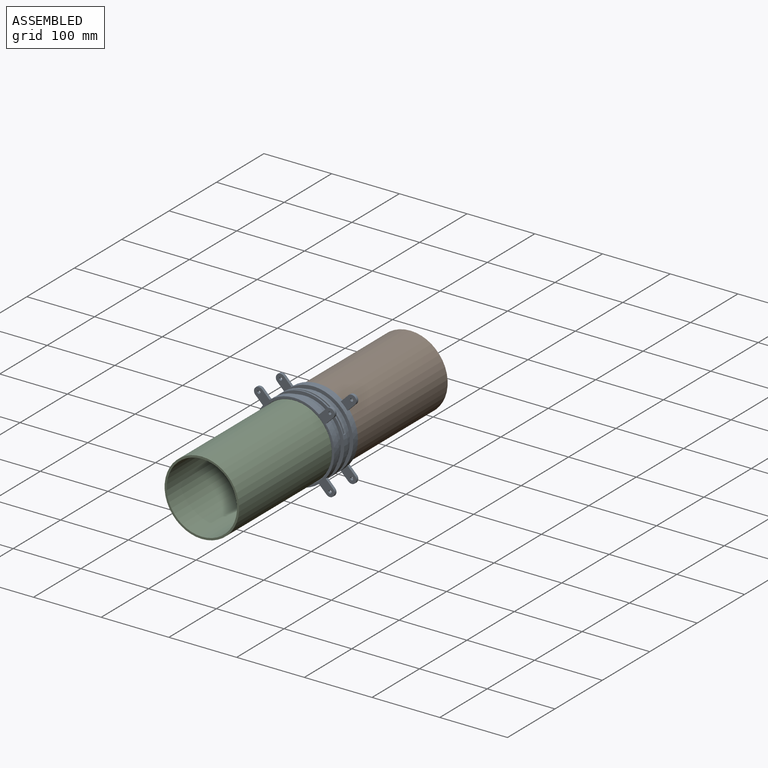
[diagram: assembled view]
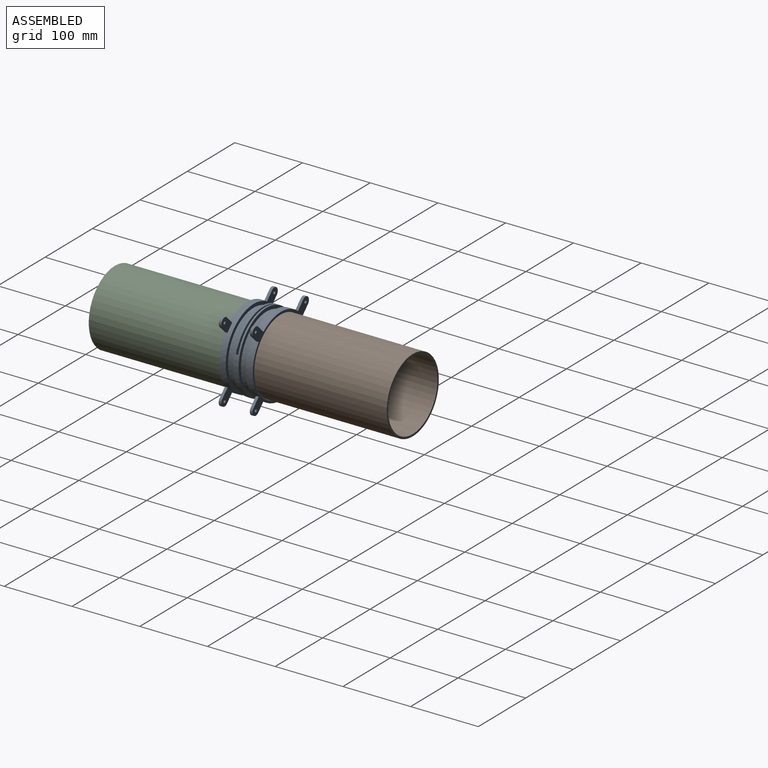
[diagram: assembled view, second angle]
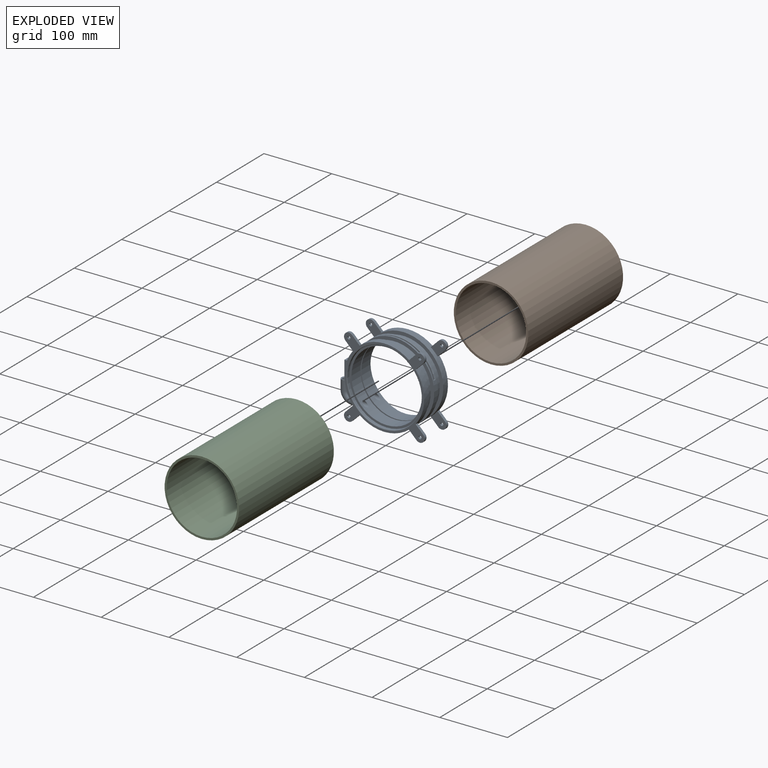
[diagram: exploded view]
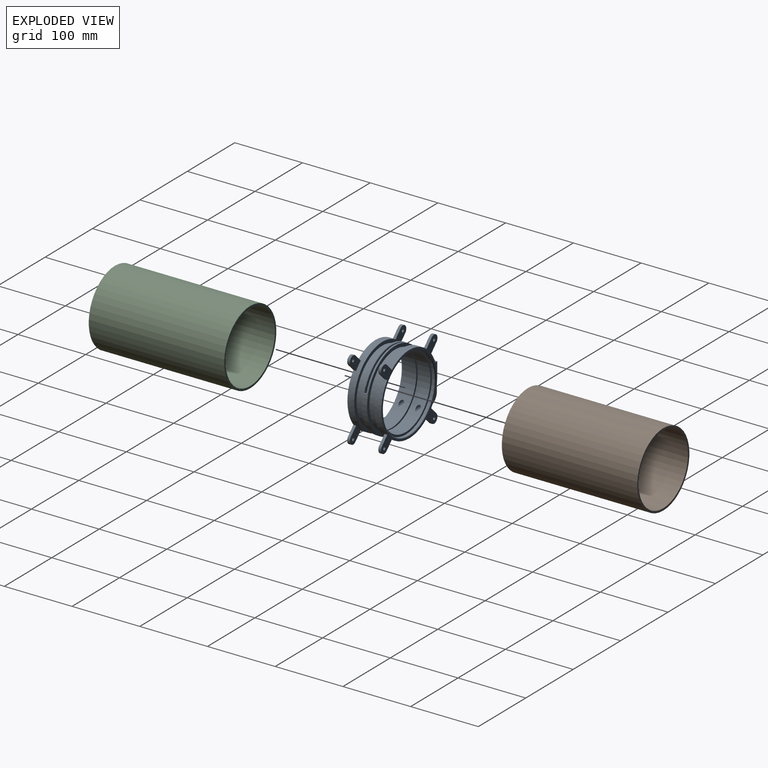
[diagram: exploded view, second angle]
ASSEMBLY  parts=3 mates=2
PART A: 101 faces, bbox 135.1x50x125.3 mm
  f0: cylinder r=52mm len=104mm, axis (0,1,0), area 6150.1mm2, adj f25,f47,f48
  f1: cylinder r=59mm len=118mm, axis (0,1,0), area 2404mm2, adj f6,f7,f11,f12,f13,f22,f54,f55
  f2: cylinder r=59mm len=118mm, axis (0,1,0), area 3243.5mm2, adj f5,f8,f9,f10,f11,f12,f15,f17
  f3: cylinder r=5.6mm len=15mm, axis (0,0,-1), area 70.6mm2, adj f11,f16,f19,f22
  f4: cylinder r=5.6mm len=15mm, axis (0,0,-1), area 334.5mm2, adj f11,f16,f18,f21
  f5: plane 118x118mm, normal (0,1,0), area 1619mm2, adj f2,f8,f9,f11,f14,f17
  f6: plane 8x4mm, normal (0,0,1), area 32mm2, adj f1,f7,f13,f51,f65
  f7: plane 21.35x8mm, normal (-1,0,0), area 170.8mm2, adj f1,f6,f13,f65
  f8: plane 10x4mm, normal (0,0,1), area 40mm2, adj f2,f5,f9,f10
  f9: plane 21.35x10mm, normal (-1,0,0), area 213.5mm2, adj f2,f5,f8,f10
  f10: plane 119x119mm, normal (0,-1,0), area 2200.1mm2, adj f2,f8,f9,f26,f27,f28,f29,f31
  f11: plane 36.2x18.93mm, normal (0,0,1), area 254.2mm2, adj f1,f2,f3,f4,f5,f13,f14,f18
  f12: plane 13.31x11mm, normal (0,0,-1), area 91.3mm2, adj f1,f2,f13,f14,f15,f16,f21,f22
  f13: plane 118x118mm, normal (0,-1,0), area 1723.8mm2, adj f1,f6,f7,f11,f12,f14
  f14: cylinder r=54mm len=108mm, axis (0,-1,0), area 3452mm2, adj f5,f11,f12,f13,f15,f17
  f15: plane 9.68x6.64mm, normal (0,1,0), area 38.4mm2, adj f2,f12,f14,f17
  f16: torus R=11.65mm, axis (0,-1,0), area 643.8mm2, adj f3,f4,f12,f17,f20
  f17: cylinder r=5.6mm len=21.12mm, axis (1,0,0), area 461.8mm2, adj f2,f5,f14,f15,f16
  f18: plane 15x14.54mm, normal (-1,0,0), area 218.1mm2, adj f4,f11,f20,f59
  f19: plane 15x14.54mm, normal (1,0,0), area 218.1mm2, adj f3,f11,f20,f58
  f20: plane 14.54x4mm, normal (0,0,-1), area 56.2mm2, adj f16,f18,f19,f68
  f21: plane 15x7.73mm, normal (0,-1,0), area 75.1mm2, adj f2,f4,f11,f12
  f22: plane 15x7.73mm, normal (0,1,0), area 75.1mm2, adj f1,f3,f11,f12
  f23: cylinder r=3.6mm len=14mm, axis (0,0,-1), area 316.7mm2, adj f24,f52
  f24: torus R=11.65mm, axis (0,-1,0), area 413.9mm2, adj f23,f25
  f25: cylinder r=3.6mm len=21.83mm, axis (1,0,0), area 408mm2, adj f0,f24
  f26: cylinder r=7mm len=11.95mm, axis (0,-1,0), area 88mm2, adj f10,f27,f29,f30
  f27: plane 11.08x11.08mm, normal (0.71,0,-0.71), area 62.7mm2, adj f2,f10,f26,f30
  f28: cylinder r=2.25mm len=4.5mm, axis (0,-1,0), area 56.5mm2, adj f10,f30
  f29: plane 11.08x11.08mm, normal (-0.71,0,0.71), area 62.7mm2, adj f2,f10,f26,f30
  f30: plane 23.03x23.03mm, normal (0,1,0), area 276.5mm2, adj f2,f26,f27,f28,f29
  f31: cylinder r=7mm len=11.95mm, axis (0,-1,0), area 88mm2, adj f10,f32,f34,f35
  f32: plane 11.08x11.08mm, normal (-0.71,0,-0.71), area 62.7mm2, adj f2,f10,f31,f35
  f33: cylinder r=2.25mm len=4.5mm, axis (0,-1,0), area 56.5mm2, adj f10,f35
  f34: plane 11.08x11.08mm, normal (0.71,0,0.71), area 62.7mm2, adj f2,f10,f31,f35
  f35: plane 23.03x23.03mm, normal (0,1,0), area 276.5mm2, adj f2,f31,f32,f33,f34
  f36: cylinder r=7mm len=11.95mm, axis (0,-1,0), area 88mm2, adj f10,f37,f39,f40
  f37: plane 11.08x11.08mm, normal (0.71,0,0.71), area 62.7mm2, adj f2,f10,f36,f40
  f38: cylinder r=2.25mm len=4.5mm, axis (0,-1,0), area 56.5mm2, adj f10,f40
  f39: plane 11.08x11.08mm, normal (-0.71,0,-0.71), area 62.7mm2, adj f2,f10,f36,f40
  f40: plane 23.03x23.03mm, normal (0,1,0), area 276.5mm2, adj f2,f36,f37,f38,f39
  f41: plane 11.08x11.08mm, normal (0.71,0,-0.71), area 62.7mm2, adj f2,f10,f42,f45
  f42: cylinder r=7mm len=11.95mm, axis (0,-1,0), area 88mm2, adj f10,f41,f43,f45
  f43: plane 11.08x11.08mm, normal (-0.71,0,0.71), area 62.7mm2, adj f2,f10,f42,f45
  f44: cylinder r=2.25mm len=4.5mm, axis (0,-1,0), area 56.5mm2, adj f10,f45
  f45: plane 23.03x23.03mm, normal (0,1,0), area 276.5mm2, adj f2,f41,f42,f43,f44
  f46: cylinder r=55.05mm len=110.1mm, axis (0,-1,0), area 1383.6mm2, adj f47,f53
  f47: plane 110.1x110.1mm, normal (0,-1,0), area 1025.7mm2, adj f0,f46
  f48: plane 113x110.73mm, normal (0,1,0), area 1468mm2, adj f0,f49,f50,f51,f54,f55
  f49: plane 15.1x2mm, normal (-1,0,0), area 30.2mm2, adj f48,f50,f55,f97
  f50: cylinder r=55mm len=110mm, axis (0,1,0), area 345.6mm2, adj f48,f49,f51,f97
  f51: plane 21.35x4mm, normal (1,0,0), area 43.9mm2, adj f6,f48,f50,f54,f97,f100
  f52: torus R=4.6mm, axis (0,0,-1), area 39.1mm2, adj f11,f23
  f53: torus R=56.05mm, axis (0,-1,0), area 546.9mm2, adj f10,f46
  f54: torus R=58mm, axis (0,1,0), area 231.5mm2, adj f1,f48,f51,f55
  f55: cylinder r=1mm len=4mm, axis (0,1,0), area 6.9mm2, adj f1,f48,f49,f54,f97,f100
  f56: cylinder r=52mm len=104mm, axis (0,-1,0), area 6150.1mm2, adj f74,f96,f97
  f57: cylinder r=59mm len=118mm, axis (0,-1,0), area 3243.5mm2, adj f11,f60,f61,f62,f63,f64,f67,f69
  f58: cylinder r=5.6mm len=15mm, axis (0,0,-1), area 70.6mm2, adj f11,f19,f68,f71
  f59: cylinder r=5.6mm len=15mm, axis (0,0,-1), area 334.5mm2, adj f11,f18,f68,f70
  f60: plane 118x118mm, normal (0,-1,0), area 1619mm2, adj f11,f57,f61,f62,f66,f69
  f61: plane 10x4mm, normal (0,0,1), area 40mm2, adj f57,f60,f62,f63
  f62: plane 21.35x10mm, normal (-1,0,0), area 213.5mm2, adj f57,f60,f61,f63
  f63: plane 119x119mm, normal (0,1,0), area 2200.1mm2, adj f57,f61,f62,f75,f76,f77,f78,f80
  f64: plane 13.31x11mm, normal (0,0,-1), area 91.3mm2, adj f1,f57,f65,f66,f67,f68,f70,f71
  f65: plane 118x118mm, normal (0,1,0), area 1723.8mm2, adj f1,f6,f7,f11,f64,f66
  f66: cylinder r=54mm len=108mm, axis (0,1,0), area 3451.6mm2, adj f11,f60,f64,f65,f67,f69
  f67: plane 9.68x6.64mm, normal (0,-1,0), area 38.4mm2, adj f57,f64,f66,f69
  f68: torus R=11.65mm, axis (0,1,0), area 643.8mm2, adj f20,f58,f59,f64,f69
  f69: cylinder r=5.6mm len=21.12mm, axis (1,0,0), area 461.9mm2, adj f57,f60,f66,f67,f68
  f70: plane 15x7.73mm, normal (0,1,0), area 75.1mm2, adj f11,f57,f59,f64
  f71: plane 15x7.73mm, normal (0,-1,0), area 75.1mm2, adj f1,f11,f58,f64
  f72: cylinder r=3.6mm len=14mm, axis (0,0,-1), area 316.7mm2, adj f73,f98
  f73: torus R=11.65mm, axis (0,1,0), area 413.9mm2, adj f72,f74
  f74: cylinder r=3.6mm len=21.83mm, axis (1,0,0), area 408mm2, adj f56,f73
  f75: cylinder r=7mm len=11.95mm, axis (0,1,0), area 88mm2, adj f63,f76,f78,f79
  f76: plane 11.08x11.08mm, normal (0.71,0,-0.71), area 62.7mm2, adj f57,f63,f75,f79
  f77: cylinder r=2.25mm len=4.5mm, axis (0,1,0), area 56.5mm2, adj f63,f79
  f78: plane 11.08x11.08mm, normal (-0.71,0,0.71), area 62.7mm2, adj f57,f63,f75,f79
  f79: plane 23.03x23.03mm, normal (0,-1,0), area 276.5mm2, adj f57,f75,f76,f77,f78
  f80: cylinder r=7mm len=11.95mm, axis (0,1,0), area 88mm2, adj f63,f81,f83,f84
  f81: plane 11.08x11.08mm, normal (-0.71,0,-0.71), area 62.7mm2, adj f57,f63,f80,f84
  f82: cylinder r=2.25mm len=4.5mm, axis (0,1,0), area 56.5mm2, adj f63,f84
  f83: plane 11.08x11.08mm, normal (0.71,0,0.71), area 62.7mm2, adj f57,f63,f80,f84
  f84: plane 23.03x23.03mm, normal (0,-1,0), area 276.5mm2, adj f57,f80,f81,f82,f83
  f85: cylinder r=7mm len=11.95mm, axis (0,1,0), area 88mm2, adj f63,f86,f88,f89
  f86: plane 11.08x11.08mm, normal (0.71,0,0.71), area 62.7mm2, adj f57,f63,f85,f89
  f87: cylinder r=2.25mm len=4.5mm, axis (0,1,0), area 56.5mm2, adj f63,f89
  f88: plane 11.08x11.08mm, normal (-0.71,0,-0.71), area 62.7mm2, adj f57,f63,f85,f89
  f89: plane 23.03x23.03mm, normal (0,-1,0), area 276.5mm2, adj f57,f85,f86,f87,f88
  f90: plane 11.08x11.08mm, normal (0.71,0,-0.71), area 62.7mm2, adj f57,f63,f91,f94
  f91: cylinder r=7mm len=11.95mm, axis (0,1,0), area 88mm2, adj f63,f90,f92,f94
  f92: plane 11.08x11.08mm, normal (-0.71,0,0.71), area 62.7mm2, adj f57,f63,f91,f94
  f93: cylinder r=2.25mm len=4.5mm, axis (0,1,0), area 56.5mm2, adj f63,f94
  f94: plane 23.03x23.03mm, normal (0,-1,0), area 276.5mm2, adj f57,f90,f91,f92,f93
  f95: cylinder r=55.05mm len=110.1mm, axis (0,1,0), area 1383.6mm2, adj f96,f99
  f96: plane 110.1x110.1mm, normal (0,1,0), area 1025.7mm2, adj f56,f95
  f97: plane 113x110.73mm, normal (0,-1,0), area 1468mm2, adj f49,f50,f51,f55,f56,f100
  f98: torus R=4.6mm, axis (0,0,-1), area 39.1mm2, adj f11,f72
  f99: torus R=56.05mm, axis (0,1,0), area 546.9mm2, adj f63,f95
  f100: torus R=58mm, axis (0,-1,0), area 231.5mm2, adj f1,f51,f55,f97
PART B: 4 faces, bbox 110x200x110 mm
  f0: cylinder r=52mm len=200mm, axis (0,1,0), area 65345.1mm2, adj f2,f3
  f1: cylinder r=55mm len=200mm, axis (0,1,0), area 69115mm2, adj f2,f3
  f2: plane 110x110mm, normal (0,-1,0), area 1008.5mm2, adj f0,f1
  f3: plane 110x110mm, normal (0,1,0), area 1008.5mm2, adj f0,f1
PART C: same geometry as B
PLACE A t=(-14.5,-59.56,-34.3)mm
PLACE B t=(-14.5,172.94,-34.3)mm
PLACE C t=(-14.5,-67.06,-34.3)mm
MATE fastened C.f0 <-> A.f46  axis (0,1,0) through (-14.5,-67.06,-34.3)mm
MATE fastened A.f46 <-> B.f0  axis (0,1,0) through (-14.5,-27.06,-34.3)mm
